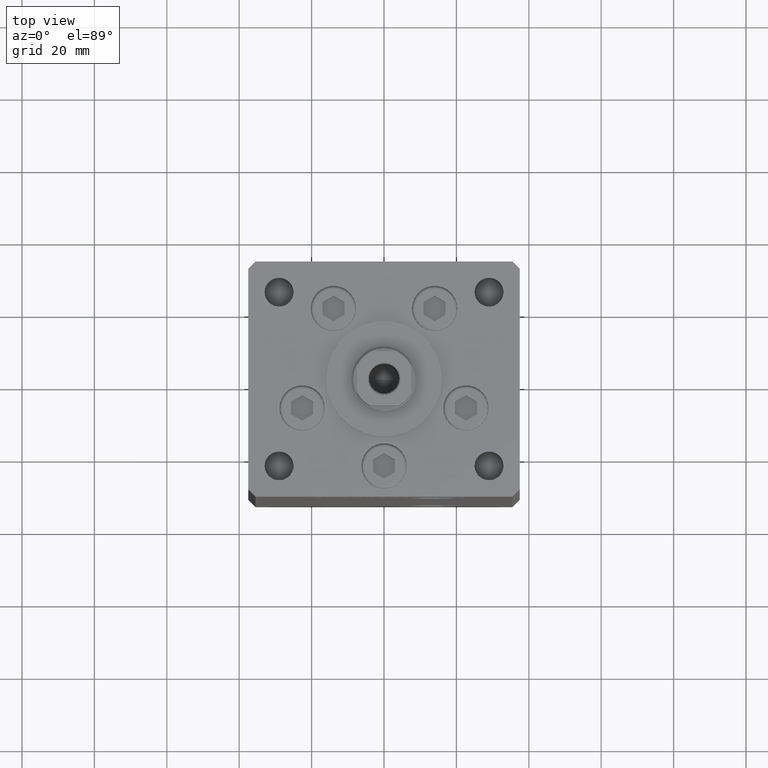
[diagram: clean part render]
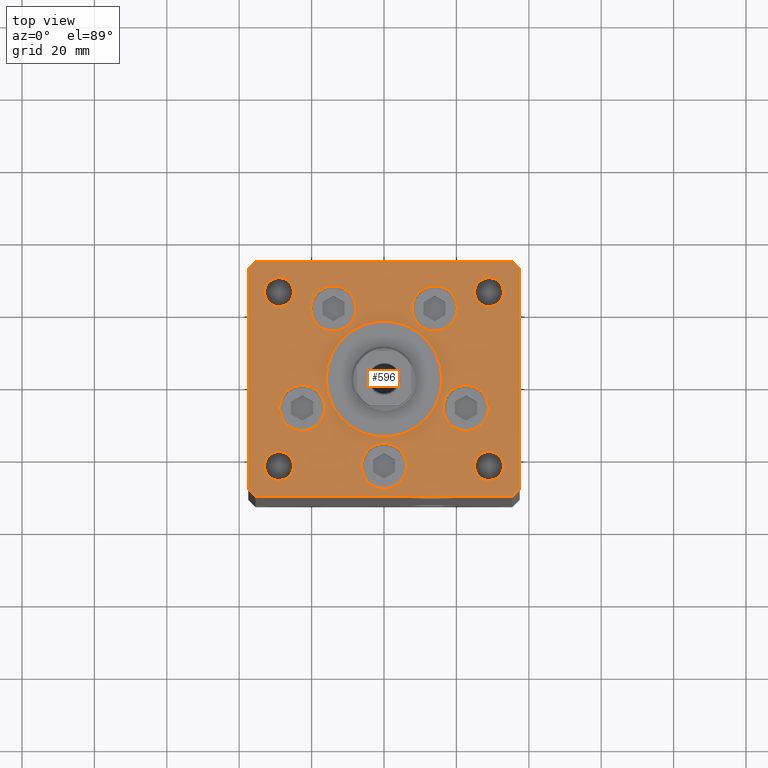
[diagram: same view with one face highlighted and labeled with its STEP entity id]
A machine part, top view. The second image highlights one B-rep face of the part: STEP entity #596.
In plain terms, the highlighted planar face has unit normal (0, 0, 1).
Its self-contained STEP definition (entity closure, byte-faithful):
#66 = EDGE_LOOP ( 'NONE', ( #15421, #15672 ) ) ;
#104 = DIRECTION ( 'NONE',  ( 1.000000000000000000, 0.000000000000000000, 0.000000000000000000 ) ) ;
#203 = AXIS2_PLACEMENT_3D ( 'NONE', #8729, #36456, #16388 ) ;
#596 = ADVANCED_FACE ( 'NONE', ( #21154, #45423, #24598, #12699, #40698, #12193, #28803, #835, #4531, #25112, #41474 ), #5325, .T. ) ;
#835 = FACE_BOUND ( 'NONE', #66, .T. ) ;
#882 = EDGE_CURVE ( 'NONE', #11143, #18147, #37155, .T. ) ;
#976 = LINE ( 'NONE', #5195, #3206 ) ;
#1214 = AXIS2_PLACEMENT_3D ( 'NONE', #50003, #25720, #5396 ) ;
#1288 = CARTESIAN_POINT ( 'NONE',  ( -25.00000000000000000, 24.00000000000000711, 0.000000000000000000 ) ) ;
#1403 = CIRCLE ( 'NONE', #25855, 16.00000000000000355 ) ;
#1423 = VERTEX_POINT ( 'NONE', #39486 ) ;
#1540 = EDGE_CURVE ( 'NONE', #18147, #11143, #6883, .T. ) ;
#1707 = CARTESIAN_POINT ( 'NONE',  ( 33.00000000000000000, 24.00000000000000355, 0.000000000000000000 ) ) ;
#1768 = ORIENTED_EDGE ( 'NONE', *, *, #1540, .F. ) ;
#1795 = AXIS2_PLACEMENT_3D ( 'NONE', #15307, #19519, #19009 ) ;
#1915 = ORIENTED_EDGE ( 'NONE', *, *, #29409, .T. ) ;
#2008 = ORIENTED_EDGE ( 'NONE', *, *, #30509, .T. ) ;
#2312 = EDGE_CURVE ( 'NONE', #10512, #25144, #17813, .T. ) ;
#2767 = CARTESIAN_POINT ( 'NONE',  ( -20.24106857963324302, 19.50000000000000000, 0.000000000000000000 ) ) ;
#2912 = CIRCLE ( 'NONE', #1214, 4.000000000000000000 ) ;
#3206 = VECTOR ( 'NONE', #21296, 1000.000000000000000 ) ;
#3330 = DIRECTION ( 'NONE',  ( 0.000000000000000000, 0.000000000000000000, 1.000000000000000000 ) ) ;
#3910 = EDGE_LOOP ( 'NONE', ( #20090, #7010 ) ) ;
#4030 = CIRCLE ( 'NONE', #36059, 4.000000000000000000 ) ;
#4133 = CIRCLE ( 'NONE', #6719, 6.250000000000001776 ) ;
#4223 = CARTESIAN_POINT ( 'NONE',  ( -37.50000000000001421, 30.50000000000000000, 0.000000000000000000 ) ) ;
#4434 = EDGE_LOOP ( 'NONE', ( #42811, #49718 ) ) ;
#4439 = ORIENTED_EDGE ( 'NONE', *, *, #49022, .T. ) ;
#4446 = CARTESIAN_POINT ( 'NONE',  ( -29.00000000000000000, -23.99999999999999645, 0.000000000000000000 ) ) ;
#4531 = FACE_BOUND ( 'NONE', #3910, .T. ) ;
#4834 = CIRCLE ( 'NONE', #19191, 6.250000000000001776 ) ;
#5116 = CARTESIAN_POINT ( 'NONE',  ( 0.000000000000000000, -24.00000000000001066, 0.000000000000000000 ) ) ;
#5195 = CARTESIAN_POINT ( 'NONE',  ( 37.50000000000000711, 30.50000000000001421, 0.000000000000000000 ) ) ;
#5325 = PLANE ( 'NONE',  #21987 ) ;
#5396 = DIRECTION ( 'NONE',  ( -1.000000000000000000, 0.000000000000000000, 0.000000000000000000 ) ) ;
#5736 = VECTOR ( 'NONE', #7493, 1000.000000000000000 ) ;
#5785 = EDGE_CURVE ( 'NONE', #40998, #52177, #42267, .T. ) ;
#6198 = ORIENTED_EDGE ( 'NONE', *, *, #31360, .T. ) ;
#6534 = VECTOR ( 'NONE', #14814, 1000.000000000000000 ) ;
#6719 = AXIS2_PLACEMENT_3D ( 'NONE', #7121, #19264, #35367 ) ;
#6747 = EDGE_CURVE ( 'NONE', #19131, #31919, #12392, .T. ) ;
#6883 = CIRCLE ( 'NONE', #32158, 6.250000000000000000 ) ;
#6890 = CARTESIAN_POINT ( 'NONE',  ( -35.50000000000001421, -32.50000000000000711, 0.000000000000000000 ) ) ;
#7010 = ORIENTED_EDGE ( 'NONE', *, *, #8850, .F. ) ;
#7121 = CARTESIAN_POINT ( 'NONE',  ( 22.62741699796953299, -8.000000000000000000, 0.000000000000000000 ) ) ;
#7265 = VERTEX_POINT ( 'NONE', #8767 ) ;
#7310 = ORIENTED_EDGE ( 'NONE', *, *, #22599, .F. ) ;
#7475 = CARTESIAN_POINT ( 'NONE',  ( 37.50000000000000711, 30.50000000000001421, 0.000000000000000000 ) ) ;
#7493 = DIRECTION ( 'NONE',  ( 0.7071067811865463515, 0.7071067811865487940, 0.000000000000000000 ) ) ;
#7893 = CIRCLE ( 'NONE', #51712, 3.999999999999996447 ) ;
#7961 = DIRECTION ( 'NONE',  ( 1.000000000000000000, 0.000000000000000000, 0.000000000000000000 ) ) ;
#7962 = VERTEX_POINT ( 'NONE', #42958 ) ;
#8321 = CIRCLE ( 'NONE', #46264, 4.000000000000000000 ) ;
#8729 = CARTESIAN_POINT ( 'NONE',  ( 0.000000000000000000, -6.938893903907228378E-15, 0.000000000000000000 ) ) ;
#8767 = CARTESIAN_POINT ( 'NONE',  ( -35.50000000000000711, 32.49999999999997868, 0.000000000000000000 ) ) ;
#8850 = EDGE_CURVE ( 'NONE', #38091, #24883, #7893, .T. ) ;
#8955 = CIRCLE ( 'NONE', #45189, 4.000000000000000000 ) ;
#9024 = VECTOR ( 'NONE', #19503, 1000.000000000000000 ) ;
#9046 = DIRECTION ( 'NONE',  ( 0.000000000000000000, 0.000000000000000000, 1.000000000000000000 ) ) ;
#9353 = CARTESIAN_POINT ( 'NONE',  ( -32.99999999999999289, -23.99999999999999645, 0.000000000000000000 ) ) ;
#9469 = CIRCLE ( 'NONE', #49086, 6.250000000000000000 ) ;
#9948 = CARTESIAN_POINT ( 'NONE',  ( 29.00000000000000355, -23.99999999999999645, 0.000000000000000000 ) ) ;
#10056 = EDGE_CURVE ( 'NONE', #45001, #7265, #19671, .T. ) ;
#10165 = DIRECTION ( 'NONE',  ( 1.000000000000000000, 0.000000000000000000, 0.000000000000000000 ) ) ;
#10166 = CIRCLE ( 'NONE', #28678, 3.999999999999996447 ) ;
#10194 = AXIS2_PLACEMENT_3D ( 'NONE', #12902, #33243, #45359 ) ;
#10245 = EDGE_CURVE ( 'NONE', #7962, #49902, #9469, .T. ) ;
#10305 = EDGE_CURVE ( 'NONE', #21645, #44792, #12831, .T. ) ;
#10337 = EDGE_LOOP ( 'NONE', ( #45717, #21238 ) ) ;
#10508 = DIRECTION ( 'NONE',  ( 1.000000000000000000, 0.000000000000000000, 0.000000000000000000 ) ) ;
#10512 = VERTEX_POINT ( 'NONE', #43480 ) ;
#10624 = CARTESIAN_POINT ( 'NONE',  ( 16.00000000000000355, -4.979459025271462852E-15, 0.000000000000000000 ) ) ;
#10997 = CARTESIAN_POINT ( 'NONE',  ( 33.00000000000000000, -23.99999999999999645, 0.000000000000000000 ) ) ;
#11143 = VERTEX_POINT ( 'NONE', #28232 ) ;
#11535 = DIRECTION ( 'NONE',  ( 1.000000000000000000, 0.000000000000000000, 0.000000000000000000 ) ) ;
#11650 = CARTESIAN_POINT ( 'NONE',  ( 29.00000000000000355, -23.99999999999999645, 0.000000000000000000 ) ) ;
#12053 = DIRECTION ( 'NONE',  ( 0.000000000000000000, 0.000000000000000000, 1.000000000000000000 ) ) ;
#12193 = FACE_BOUND ( 'NONE', #21951, .T. ) ;
#12228 = ORIENTED_EDGE ( 'NONE', *, *, #2312, .F. ) ;
#12392 = LINE ( 'NONE', #4223, #40697 ) ;
#12635 = DIRECTION ( 'NONE',  ( 0.000000000000000000, 0.000000000000000000, 1.000000000000000000 ) ) ;
#12699 = FACE_BOUND ( 'NONE', #10337, .T. ) ;
#12761 = DIRECTION ( 'NONE',  ( 0.000000000000000000, 0.000000000000000000, 1.000000000000000000 ) ) ;
#12831 = CIRCLE ( 'NONE', #203, 16.00000000000000355 ) ;
#12902 = CARTESIAN_POINT ( 'NONE',  ( -13.99106857963324124, 19.50000000000000000, 0.000000000000000000 ) ) ;
#12903 = DIRECTION ( 'NONE',  ( 1.000000000000000000, 0.000000000000000000, 0.000000000000000000 ) ) ;
#13588 = VERTEX_POINT ( 'NONE', #1288 ) ;
#14059 = VERTEX_POINT ( 'NONE', #7475 ) ;
#14139 = CARTESIAN_POINT ( 'NONE',  ( 13.99106857963324124, 19.50000000000000000, 0.000000000000000000 ) ) ;
#14515 = DIRECTION ( 'NONE',  ( -0.000000000000000000, -0.000000000000000000, -1.000000000000000000 ) ) ;
#14720 = VERTEX_POINT ( 'NONE', #31618 ) ;
#14814 = DIRECTION ( 'NONE',  ( 0.000000000000000000, 1.000000000000000000, 0.000000000000000000 ) ) ;
#15151 = EDGE_CURVE ( 'NONE', #43799, #13588, #2912, .T. ) ;
#15307 = CARTESIAN_POINT ( 'NONE',  ( 13.99106857963324124, 19.50000000000000000, 0.000000000000000000 ) ) ;
#15421 = ORIENTED_EDGE ( 'NONE', *, *, #36848, .F. ) ;
#15427 = ORIENTED_EDGE ( 'NONE', *, *, #882, .F. ) ;
#15592 = DIRECTION ( 'NONE',  ( 2.275047181608926165E-16, -1.000000000000000000, 0.000000000000000000 ) ) ;
#15654 = ORIENTED_EDGE ( 'NONE', *, *, #15151, .T. ) ;
#15672 = ORIENTED_EDGE ( 'NONE', *, *, #30098, .F. ) ;
#15863 = VERTEX_POINT ( 'NONE', #10997 ) ;
#15875 = EDGE_LOOP ( 'NONE', ( #38542, #15654 ) ) ;
#15964 = DIRECTION ( 'NONE',  ( 1.000000000000000000, 0.000000000000000000, 0.000000000000000000 ) ) ;
#16129 = CARTESIAN_POINT ( 'NONE',  ( 0.000000000000000000, -6.938893903907228378E-15, 0.000000000000000000 ) ) ;
#16388 = DIRECTION ( 'NONE',  ( 1.000000000000000000, 0.000000000000000000, 0.000000000000000000 ) ) ;
#16488 = CARTESIAN_POINT ( 'NONE',  ( -13.99106857963324124, 19.50000000000000000, 0.000000000000000000 ) ) ;
#16496 = CIRCLE ( 'NONE', #26618, 6.250000000000001776 ) ;
#16932 = CARTESIAN_POINT ( 'NONE',  ( 0.000000000000000000, 0.000000000000000000, 0.000000000000000000 ) ) ;
#17035 = CARTESIAN_POINT ( 'NONE',  ( -16.37741699796953299, -8.000000000000000000, 0.000000000000000000 ) ) ;
#17562 = CIRCLE ( 'NONE', #38634, 6.250000000000001776 ) ;
#17813 = CIRCLE ( 'NONE', #1795, 6.250000000000000000 ) ;
#18147 = VERTEX_POINT ( 'NONE', #2767 ) ;
#18291 = CARTESIAN_POINT ( 'NONE',  ( -37.50000000000000000, -30.50000000000004263, 0.000000000000000000 ) ) ;
#18505 = ORIENTED_EDGE ( 'NONE', *, *, #39736, .T. ) ;
#18593 = CARTESIAN_POINT ( 'NONE',  ( -25.00000000000000355, -23.99999999999999645, 0.000000000000000000 ) ) ;
#18860 = CARTESIAN_POINT ( 'NONE',  ( 35.50000000000001421, -32.49999999999992184, 0.000000000000000000 ) ) ;
#18900 = EDGE_CURVE ( 'NONE', #40880, #31270, #16496, .T. ) ;
#19009 = DIRECTION ( 'NONE',  ( 1.000000000000000000, 0.000000000000000000, 0.000000000000000000 ) ) ;
#19131 = VERTEX_POINT ( 'NONE', #32114 ) ;
#19191 = AXIS2_PLACEMENT_3D ( 'NONE', #41245, #9046, #104 ) ;
#19255 = LINE ( 'NONE', #35358, #9024 ) ;
#19264 = DIRECTION ( 'NONE',  ( 0.000000000000000000, 0.000000000000000000, 1.000000000000000000 ) ) ;
#19308 = EDGE_LOOP ( 'NONE', ( #15427, #1768 ) ) ;
#19503 = DIRECTION ( 'NONE',  ( -0.7071067811865524577, -0.7071067811865426878, 0.000000000000000000 ) ) ;
#19519 = DIRECTION ( 'NONE',  ( 0.000000000000000000, 0.000000000000000000, 1.000000000000000000 ) ) ;
#19671 = LINE ( 'NONE', #39985, #40658 ) ;
#19745 = CARTESIAN_POINT ( 'NONE',  ( 16.37741699796953299, -8.000000000000000000, 0.000000000000000000 ) ) ;
#19922 = DIRECTION ( 'NONE',  ( 0.000000000000000000, 0.000000000000000000, 1.000000000000000000 ) ) ;
#20086 = LINE ( 'NONE', #36698, #48726 ) ;
#20090 = ORIENTED_EDGE ( 'NONE', *, *, #50240, .F. ) ;
#20092 = DIRECTION ( 'NONE',  ( -0.000000000000000000, -0.000000000000000000, -1.000000000000000000 ) ) ;
#20094 = DIRECTION ( 'NONE',  ( 0.000000000000000000, 0.000000000000000000, 1.000000000000000000 ) ) ;
#20547 = DIRECTION ( 'NONE',  ( 0.000000000000000000, 0.000000000000000000, 1.000000000000000000 ) ) ;
#20842 = ORIENTED_EDGE ( 'NONE', *, *, #44986, .T. ) ;
#21154 = FACE_BOUND ( 'NONE', #23050, .T. ) ;
#21238 = ORIENTED_EDGE ( 'NONE', *, *, #40395, .F. ) ;
#21296 = DIRECTION ( 'NONE',  ( -0.7071067811865524577, 0.7071067811865426878, 0.000000000000000000 ) ) ;
#21645 = VERTEX_POINT ( 'NONE', #10624 ) ;
#21780 = AXIS2_PLACEMENT_3D ( 'NONE', #14139, #30240, #10165 ) ;
#21919 = CIRCLE ( 'NONE', #28647, 4.000000000000000000 ) ;
#21951 = EDGE_LOOP ( 'NONE', ( #33006, #27350 ) ) ;
#21987 = AXIS2_PLACEMENT_3D ( 'NONE', #16932, #37260, #29066 ) ;
#22599 = EDGE_CURVE ( 'NONE', #44792, #21645, #1403, .T. ) ;
#22987 = DIRECTION ( 'NONE',  ( 1.000000000000000000, 1.172770800660376149E-15, 0.000000000000000000 ) ) ;
#23050 = EDGE_LOOP ( 'NONE', ( #7310, #39698 ) ) ;
#23646 = CARTESIAN_POINT ( 'NONE',  ( 29.00000000000000000, 24.00000000000000355, 0.000000000000000000 ) ) ;
#24144 = DIRECTION ( 'NONE',  ( -1.000000000000000000, -1.954618001100627573E-16, 0.000000000000000000 ) ) ;
#24306 = EDGE_CURVE ( 'NONE', #49902, #7962, #47800, .T. ) ;
#24598 = FACE_BOUND ( 'NONE', #38579, .T. ) ;
#24755 = VERTEX_POINT ( 'NONE', #1707 ) ;
#24883 = VERTEX_POINT ( 'NONE', #18593 ) ;
#25112 = FACE_OUTER_BOUND ( 'NONE', #34268, .T. ) ;
#25144 = VERTEX_POINT ( 'NONE', #37003 ) ;
#25720 = DIRECTION ( 'NONE',  ( -0.000000000000000000, -0.000000000000000000, -1.000000000000000000 ) ) ;
#25855 = AXIS2_PLACEMENT_3D ( 'NONE', #16129, #20094, #7961 ) ;
#25992 = CARTESIAN_POINT ( 'NONE',  ( 28.87741699796953654, -8.000000000000000000, 0.000000000000000000 ) ) ;
#26417 = EDGE_CURVE ( 'NONE', #13588, #43799, #8955, .T. ) ;
#26618 = AXIS2_PLACEMENT_3D ( 'NONE', #40855, #36129, #41113 ) ;
#26846 = DIRECTION ( 'NONE',  ( 1.000000000000000000, 0.000000000000000000, 0.000000000000000000 ) ) ;
#26992 = EDGE_LOOP ( 'NONE', ( #4439, #20842 ) ) ;
#27350 = ORIENTED_EDGE ( 'NONE', *, *, #32076, .F. ) ;
#28232 = CARTESIAN_POINT ( 'NONE',  ( -7.741068579633241242, 19.50000000000000000, 0.000000000000000000 ) ) ;
#28647 = AXIS2_PLACEMENT_3D ( 'NONE', #9948, #42146, #34504 ) ;
#28678 = AXIS2_PLACEMENT_3D ( 'NONE', #4446, #20547, #28719 ) ;
#28719 = DIRECTION ( 'NONE',  ( 1.000000000000000000, 0.000000000000000000, 0.000000000000000000 ) ) ;
#28803 = FACE_BOUND ( 'NONE', #15875, .T. ) ;
#29066 = DIRECTION ( 'NONE',  ( 1.000000000000000000, 0.000000000000000000, 0.000000000000000000 ) ) ;
#29135 = ORIENTED_EDGE ( 'NONE', *, *, #5785, .T. ) ;
#29409 = EDGE_CURVE ( 'NONE', #38203, #14059, #37536, .T. ) ;
#29858 = VERTEX_POINT ( 'NONE', #19745 ) ;
#29976 = EDGE_CURVE ( 'NONE', #14059, #45001, #976, .T. ) ;
#30098 = EDGE_CURVE ( 'NONE', #1423, #24755, #4030, .T. ) ;
#30240 = DIRECTION ( 'NONE',  ( 0.000000000000000000, 0.000000000000000000, 1.000000000000000000 ) ) ;
#30356 = VERTEX_POINT ( 'NONE', #25992 ) ;
#30509 = EDGE_CURVE ( 'NONE', #52177, #38203, #43634, .T. ) ;
#30616 = DIRECTION ( 'NONE',  ( -1.000000000000000000, 0.000000000000000000, 0.000000000000000000 ) ) ;
#30985 = AXIS2_PLACEMENT_3D ( 'NONE', #44705, #19922, #15964 ) ;
#31270 = VERTEX_POINT ( 'NONE', #49687 ) ;
#31360 = EDGE_CURVE ( 'NONE', #31919, #40998, #20086, .T. ) ;
#31618 = CARTESIAN_POINT ( 'NONE',  ( 25.00000000000000355, -23.99999999999999645, 0.000000000000000000 ) ) ;
#31623 = EDGE_CURVE ( 'NONE', #25144, #10512, #44521, .T. ) ;
#31919 = VERTEX_POINT ( 'NONE', #18291 ) ;
#31973 = DIRECTION ( 'NONE',  ( 0.7071067811865512365, -0.7071067811865439090, 0.000000000000000000 ) ) ;
#32076 = EDGE_CURVE ( 'NONE', #31270, #40880, #17562, .T. ) ;
#32114 = CARTESIAN_POINT ( 'NONE',  ( -37.50000000000001421, 30.50000000000000000, 0.000000000000000000 ) ) ;
#32158 = AXIS2_PLACEMENT_3D ( 'NONE', #16488, #44722, #32347 ) ;
#32347 = DIRECTION ( 'NONE',  ( 1.000000000000000000, 0.000000000000000000, 0.000000000000000000 ) ) ;
#32499 = DIRECTION ( 'NONE',  ( 1.000000000000000000, 0.000000000000000000, 0.000000000000000000 ) ) ;
#33006 = ORIENTED_EDGE ( 'NONE', *, *, #18900, .F. ) ;
#33186 = CARTESIAN_POINT ( 'NONE',  ( 6.250000000000000000, -24.00000000000001066, 0.000000000000000000 ) ) ;
#33243 = DIRECTION ( 'NONE',  ( 0.000000000000000000, 0.000000000000000000, 1.000000000000000000 ) ) ;
#33688 = CARTESIAN_POINT ( 'NONE',  ( -35.50000000000001421, -32.50000000000000711, 0.000000000000000000 ) ) ;
#34113 = CARTESIAN_POINT ( 'NONE',  ( 35.50000000000001421, -32.49999999999992184, 0.000000000000000000 ) ) ;
#34268 = EDGE_LOOP ( 'NONE', ( #6198, #29135, #2008, #1915, #35937, #38870, #18505, #42959 ) ) ;
#34271 = CARTESIAN_POINT ( 'NONE',  ( -22.62741699796953299, -8.000000000000000000, 0.000000000000000000 ) ) ;
#34504 = DIRECTION ( 'NONE',  ( -1.000000000000000000, 0.000000000000000000, 0.000000000000000000 ) ) ;
#35358 = CARTESIAN_POINT ( 'NONE',  ( -35.50000000000000711, 32.49999999999997868, 0.000000000000000000 ) ) ;
#35367 = DIRECTION ( 'NONE',  ( 1.000000000000000000, 0.000000000000000000, 0.000000000000000000 ) ) ;
#35467 = CARTESIAN_POINT ( 'NONE',  ( 37.50000000000000711, -30.49999999999992895, 0.000000000000000000 ) ) ;
#35937 = ORIENTED_EDGE ( 'NONE', *, *, #29976, .T. ) ;
#36059 = AXIS2_PLACEMENT_3D ( 'NONE', #23646, #3330, #26846 ) ;
#36129 = DIRECTION ( 'NONE',  ( 0.000000000000000000, 0.000000000000000000, 1.000000000000000000 ) ) ;
#36339 = CARTESIAN_POINT ( 'NONE',  ( -29.00000000000000000, -23.99999999999999645, 0.000000000000000000 ) ) ;
#36422 = CARTESIAN_POINT ( 'NONE',  ( 0.000000000000000000, -24.00000000000001066, 0.000000000000000000 ) ) ;
#36456 = DIRECTION ( 'NONE',  ( 0.000000000000000000, 0.000000000000000000, 1.000000000000000000 ) ) ;
#36698 = CARTESIAN_POINT ( 'NONE',  ( -37.50000000000000000, -30.50000000000004263, 0.000000000000000000 ) ) ;
#36848 = EDGE_CURVE ( 'NONE', #24755, #1423, #45298, .T. ) ;
#37003 = CARTESIAN_POINT ( 'NONE',  ( 7.741068579633241242, 19.50000000000000000, 0.000000000000000000 ) ) ;
#37155 = CIRCLE ( 'NONE', #10194, 6.250000000000000000 ) ;
#37260 = DIRECTION ( 'NONE',  ( -0.000000000000000000, 0.000000000000000000, 1.000000000000000000 ) ) ;
#37536 = LINE ( 'NONE', #40951, #6534 ) ;
#37818 = ORIENTED_EDGE ( 'NONE', *, *, #31623, .F. ) ;
#38090 = CARTESIAN_POINT ( 'NONE',  ( -16.00000000000000355, -6.938893903907228378E-15, 0.000000000000000000 ) ) ;
#38091 = VERTEX_POINT ( 'NONE', #9353 ) ;
#38203 = VERTEX_POINT ( 'NONE', #35467 ) ;
#38542 = ORIENTED_EDGE ( 'NONE', *, *, #26417, .T. ) ;
#38579 = EDGE_LOOP ( 'NONE', ( #12228, #37818 ) ) ;
#38634 = AXIS2_PLACEMENT_3D ( 'NONE', #34271, #46660, #10508 ) ;
#38870 = ORIENTED_EDGE ( 'NONE', *, *, #10056, .T. ) ;
#39486 = CARTESIAN_POINT ( 'NONE',  ( 24.99999999999999645, 24.00000000000000355, 0.000000000000000000 ) ) ;
#39698 = ORIENTED_EDGE ( 'NONE', *, *, #10305, .F. ) ;
#39736 = EDGE_CURVE ( 'NONE', #7265, #19131, #19255, .T. ) ;
#39985 = CARTESIAN_POINT ( 'NONE',  ( 35.50000000000000000, 32.49999999999999289, 0.000000000000000000 ) ) ;
#40395 = EDGE_CURVE ( 'NONE', #29858, #30356, #4834, .T. ) ;
#40658 = VECTOR ( 'NONE', #24144, 1000.000000000000000 ) ;
#40697 = VECTOR ( 'NONE', #15592, 1000.000000000000000 ) ;
#40698 = FACE_BOUND ( 'NONE', #4434, .T. ) ;
#40855 = CARTESIAN_POINT ( 'NONE',  ( -22.62741699796953299, -8.000000000000000000, 0.000000000000000000 ) ) ;
#40880 = VERTEX_POINT ( 'NONE', #17035 ) ;
#40951 = CARTESIAN_POINT ( 'NONE',  ( 37.50000000000000711, -30.49999999999992895, 0.000000000000000000 ) ) ;
#40998 = VERTEX_POINT ( 'NONE', #33688 ) ;
#41113 = DIRECTION ( 'NONE',  ( 1.000000000000000000, 0.000000000000000000, 0.000000000000000000 ) ) ;
#41245 = CARTESIAN_POINT ( 'NONE',  ( 22.62741699796953299, -8.000000000000000000, 0.000000000000000000 ) ) ;
#41474 = FACE_BOUND ( 'NONE', #26992, .T. ) ;
#42146 = DIRECTION ( 'NONE',  ( -0.000000000000000000, -0.000000000000000000, -1.000000000000000000 ) ) ;
#42267 = LINE ( 'NONE', #6890, #49949 ) ;
#42811 = ORIENTED_EDGE ( 'NONE', *, *, #24306, .F. ) ;
#42958 = CARTESIAN_POINT ( 'NONE',  ( -6.250000000000000000, -24.00000000000001066, 0.000000000000000000 ) ) ;
#42959 = ORIENTED_EDGE ( 'NONE', *, *, #6747, .T. ) ;
#43480 = CARTESIAN_POINT ( 'NONE',  ( 20.24106857963324302, 19.50000000000000000, 0.000000000000000000 ) ) ;
#43634 = LINE ( 'NONE', #18860, #5736 ) ;
#43799 = VERTEX_POINT ( 'NONE', #44327 ) ;
#44327 = CARTESIAN_POINT ( 'NONE',  ( -33.00000000000000000, 24.00000000000000711, 0.000000000000000000 ) ) ;
#44521 = CIRCLE ( 'NONE', #21780, 6.250000000000000000 ) ;
#44705 = CARTESIAN_POINT ( 'NONE',  ( 29.00000000000000000, 24.00000000000000355, 0.000000000000000000 ) ) ;
#44722 = DIRECTION ( 'NONE',  ( 0.000000000000000000, 0.000000000000000000, 1.000000000000000000 ) ) ;
#44792 = VERTEX_POINT ( 'NONE', #38090 ) ;
#44986 = EDGE_CURVE ( 'NONE', #14720, #15863, #8321, .T. ) ;
#45001 = VERTEX_POINT ( 'NONE', #48054 ) ;
#45189 = AXIS2_PLACEMENT_3D ( 'NONE', #50670, #14515, #30616 ) ;
#45265 = AXIS2_PLACEMENT_3D ( 'NONE', #36422, #12635, #12903 ) ;
#45298 = CIRCLE ( 'NONE', #30985, 4.000000000000000000 ) ;
#45316 = EDGE_CURVE ( 'NONE', #30356, #29858, #4133, .T. ) ;
#45359 = DIRECTION ( 'NONE',  ( 1.000000000000000000, 0.000000000000000000, 0.000000000000000000 ) ) ;
#45423 = FACE_BOUND ( 'NONE', #19308, .T. ) ;
#45717 = ORIENTED_EDGE ( 'NONE', *, *, #45316, .F. ) ;
#46264 = AXIS2_PLACEMENT_3D ( 'NONE', #11650, #20092, #47545 ) ;
#46660 = DIRECTION ( 'NONE',  ( 0.000000000000000000, 0.000000000000000000, 1.000000000000000000 ) ) ;
#47545 = DIRECTION ( 'NONE',  ( -1.000000000000000000, 0.000000000000000000, 0.000000000000000000 ) ) ;
#47800 = CIRCLE ( 'NONE', #45265, 6.250000000000000000 ) ;
#48054 = CARTESIAN_POINT ( 'NONE',  ( 35.50000000000000000, 32.49999999999999289, 0.000000000000000000 ) ) ;
#48726 = VECTOR ( 'NONE', #31973, 1000.000000000000000 ) ;
#49022 = EDGE_CURVE ( 'NONE', #15863, #14720, #21919, .T. ) ;
#49086 = AXIS2_PLACEMENT_3D ( 'NONE', #5116, #12761, #32499 ) ;
#49687 = CARTESIAN_POINT ( 'NONE',  ( -28.87741699796953654, -8.000000000000000000, 0.000000000000000000 ) ) ;
#49718 = ORIENTED_EDGE ( 'NONE', *, *, #10245, .F. ) ;
#49902 = VERTEX_POINT ( 'NONE', #33186 ) ;
#49949 = VECTOR ( 'NONE', #22987, 1000.000000000000000 ) ;
#50003 = CARTESIAN_POINT ( 'NONE',  ( -29.00000000000000000, 24.00000000000000711, 0.000000000000000000 ) ) ;
#50240 = EDGE_CURVE ( 'NONE', #24883, #38091, #10166, .T. ) ;
#50670 = CARTESIAN_POINT ( 'NONE',  ( -29.00000000000000000, 24.00000000000000711, 0.000000000000000000 ) ) ;
#51712 = AXIS2_PLACEMENT_3D ( 'NONE', #36339, #12053, #11535 ) ;
#52177 = VERTEX_POINT ( 'NONE', #34113 ) ;